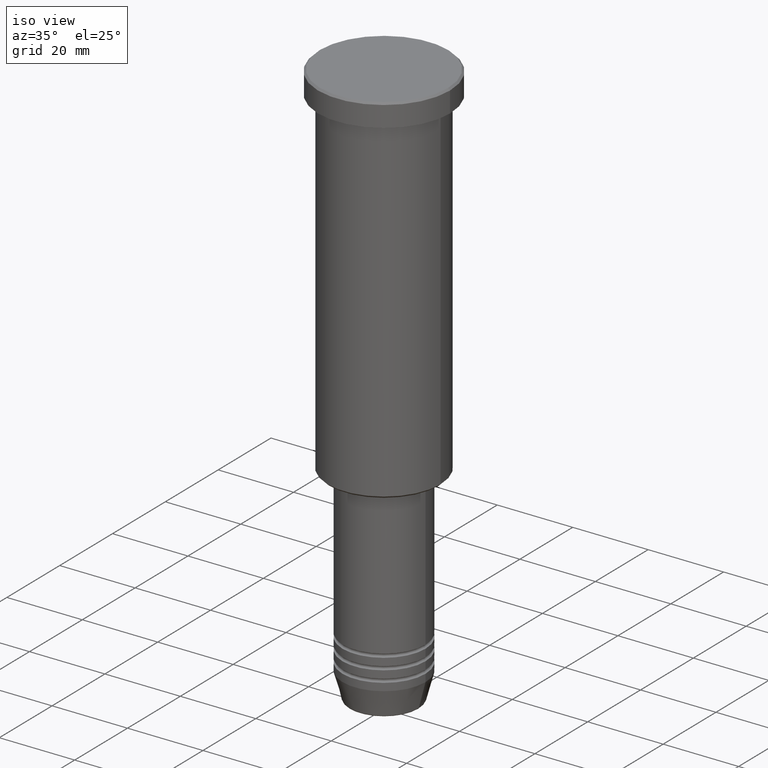
[diagram: clean part render]
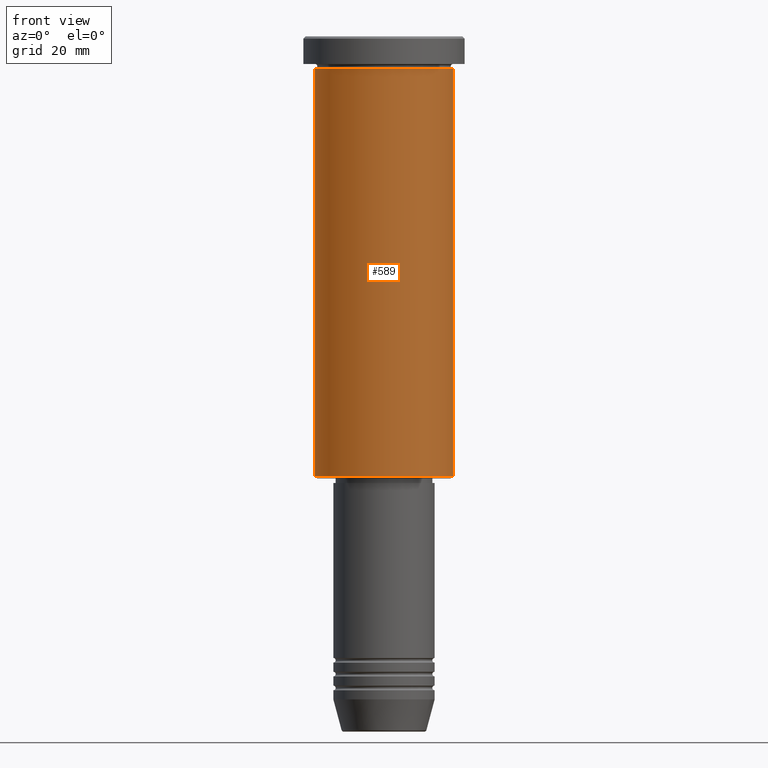
[diagram: tour spotlight — one face highlighted and labeled with its STEP entity id]
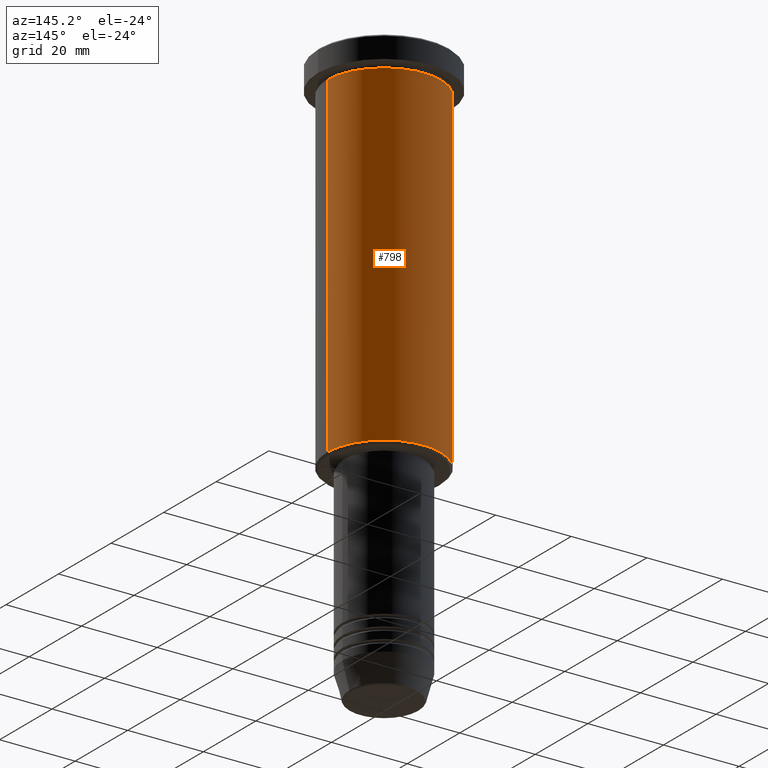
[diagram: tour spotlight — one face highlighted and labeled with its STEP entity id]
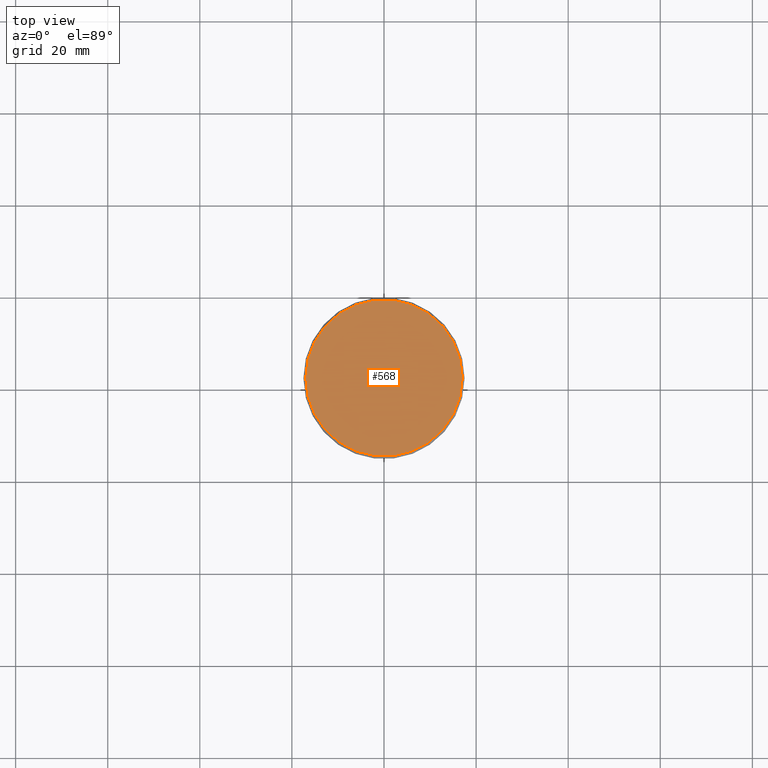
[diagram: tour spotlight — one face highlighted and labeled with its STEP entity id]
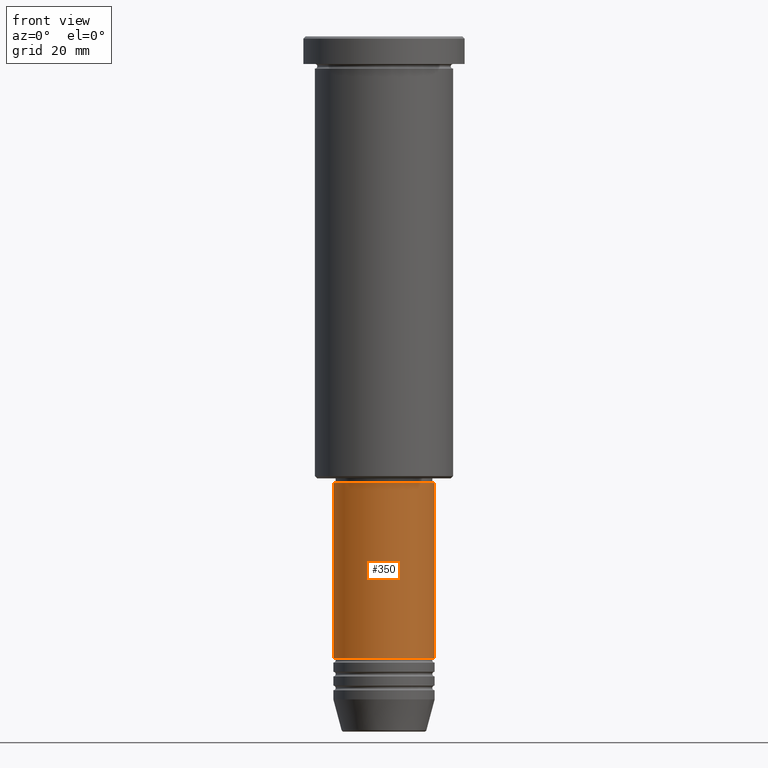
[diagram: tour spotlight — one face highlighted and labeled with its STEP entity id]
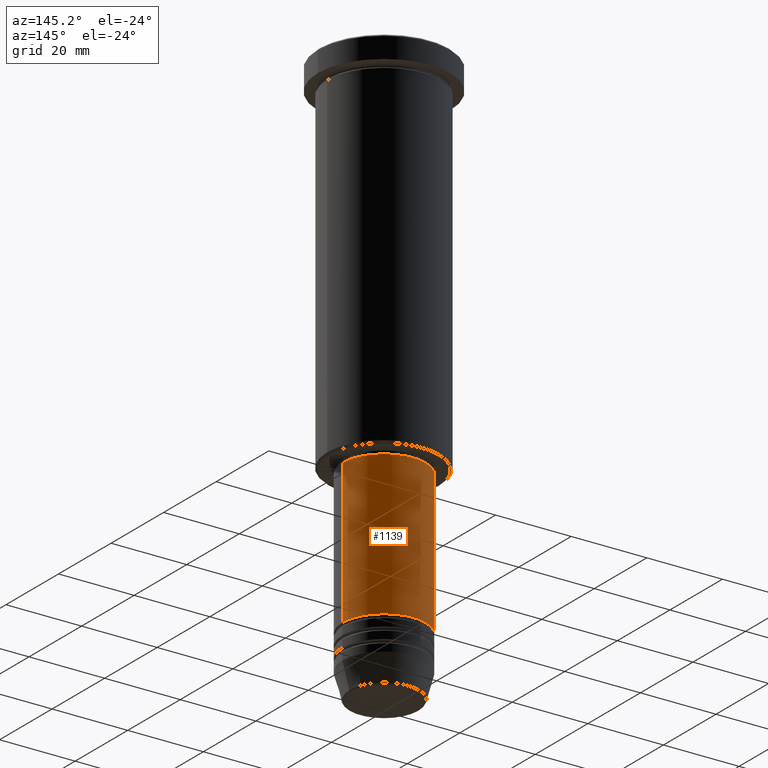
[diagram: tour spotlight — one face highlighted and labeled with its STEP entity id]
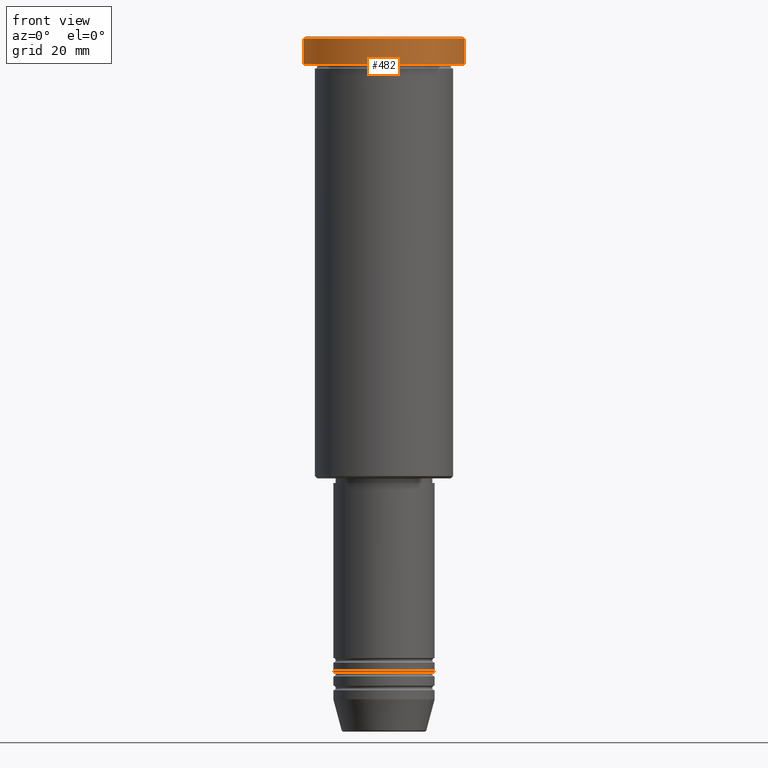
[diagram: tour spotlight — one face highlighted and labeled with its STEP entity id]
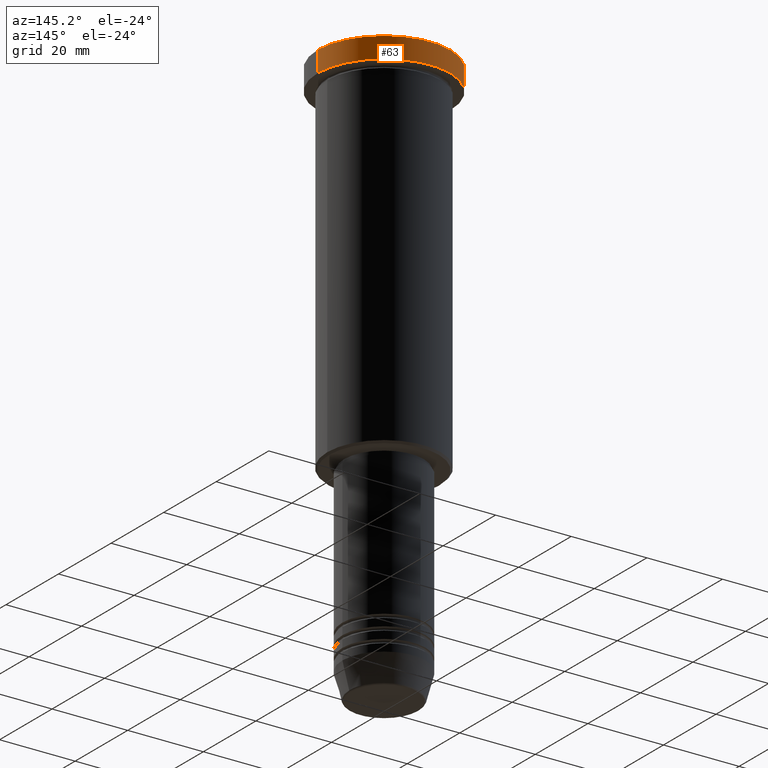
[diagram: tour spotlight — one face highlighted and labeled with its STEP entity id]
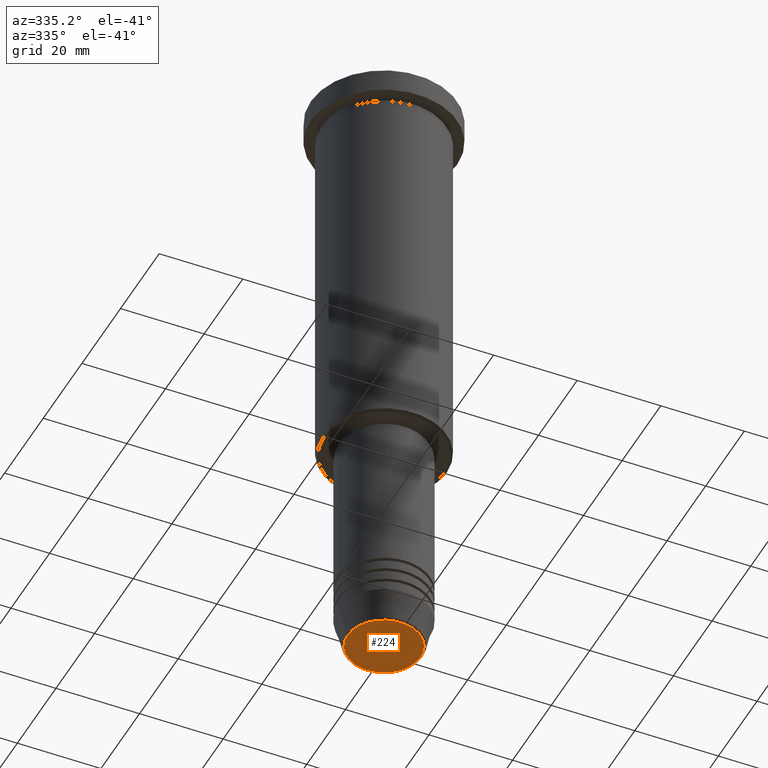
[diagram: tour spotlight — one face highlighted and labeled with its STEP entity id]
A machine part: a face-by-face anatomy tour. The part has 43 B-rep faces; the first image is the clean iso view, then the 8 largest visible faces are spotlighted one at a time (largest first), each with its STEP entity span.

Face 1 — front view, entity #589. In plain terms, the highlighted cylindrical surface (partial cylindrical patch) has radius 15 mm, axis along (-0, -0, 1).
Definition (entity closure, byte-faithful):
#41 = CARTESIAN_POINT ( 'NONE',  ( 0.000000000000000000, 0.000000000000000000, -6.999999999999995559 ) ) ;
#45 = CARTESIAN_POINT ( 'NONE',  ( -15.00000000000000000, 1.836970198721029589E-15, 0.000000000000000000 ) ) ;
#85 = CARTESIAN_POINT ( 'NONE',  ( 15.00000000000000000, 0.000000000000000000, 0.000000000000000000 ) ) ;
#117 = CIRCLE ( 'NONE', #830, 15.00000000000000000 ) ;
#174 = FACE_OUTER_BOUND ( 'NONE', #724, .T. ) ;
#227 = DIRECTION ( 'NONE',  ( 1.000000000000000000, 0.000000000000000000, 0.000000000000000000 ) ) ;
#269 = EDGE_CURVE ( 'NONE', #1089, #838, #117, .T. ) ;
#271 = CARTESIAN_POINT ( 'NONE',  ( 0.000000000000000000, 0.000000000000000000, 0.000000000000000000 ) ) ;
#409 = CARTESIAN_POINT ( 'NONE',  ( 15.00000000000000000, 0.000000000000000000, -6.999999999999995559 ) ) ;
#411 = ORIENTED_EDGE ( 'NONE', *, *, #882, .F. ) ;
#422 = CARTESIAN_POINT ( 'NONE',  ( 15.00000000000000000, 0.000000000000000000, -95.50000000000000000 ) ) ;
#427 = EDGE_CURVE ( 'NONE', #628, #852, #1126, .T. ) ;
#436 = DIRECTION ( 'NONE',  ( -0.000000000000000000, -0.000000000000000000, 1.000000000000000000 ) ) ;
#492 = DIRECTION ( 'NONE',  ( -0.000000000000000000, -0.000000000000000000, 1.000000000000000000 ) ) ;
#496 = VECTOR ( 'NONE', #787, 1000.000000000000000 ) ;
#522 = LINE ( 'NONE', #85, #752 ) ;
#548 = ORIENTED_EDGE ( 'NONE', *, *, #599, .T. ) ;
#584 = ORIENTED_EDGE ( 'NONE', *, *, #427, .F. ) ;
#589 = ADVANCED_FACE ( 'NONE', ( #174 ), #912, .T. ) ;
#599 = EDGE_CURVE ( 'NONE', #838, #852, #522, .T. ) ;
#628 = VERTEX_POINT ( 'NONE', #1183 ) ;
#640 = DIRECTION ( 'NONE',  ( -0.000000000000000000, -0.000000000000000000, 1.000000000000000000 ) ) ;
#712 = AXIS2_PLACEMENT_3D ( 'NONE', #41, #1046, #227 ) ;
#724 = EDGE_LOOP ( 'NONE', ( #411, #1055, #548, #584 ) ) ;
#752 = VECTOR ( 'NONE', #436, 1000.000000000000000 ) ;
#780 = CARTESIAN_POINT ( 'NONE',  ( 0.000000000000000000, 0.000000000000000000, -95.50000000000000000 ) ) ;
#787 = DIRECTION ( 'NONE',  ( -0.000000000000000000, -0.000000000000000000, 1.000000000000000000 ) ) ;
#830 = AXIS2_PLACEMENT_3D ( 'NONE', #780, #492, #1029 ) ;
#838 = VERTEX_POINT ( 'NONE', #422 ) ;
#852 = VERTEX_POINT ( 'NONE', #409 ) ;
#882 = EDGE_CURVE ( 'NONE', #1089, #628, #1061, .T. ) ;
#908 = DIRECTION ( 'NONE',  ( 1.000000000000000000, 0.000000000000000000, 0.000000000000000000 ) ) ;
#912 = CYLINDRICAL_SURFACE ( 'NONE', #1065, 15.00000000000000000 ) ;
#1026 = CARTESIAN_POINT ( 'NONE',  ( -15.00000000000000000, 1.836970198721029589E-15, -95.50000000000000000 ) ) ;
#1029 = DIRECTION ( 'NONE',  ( -1.000000000000000000, 0.000000000000000000, 0.000000000000000000 ) ) ;
#1046 = DIRECTION ( 'NONE',  ( -0.000000000000000000, -0.000000000000000000, 1.000000000000000000 ) ) ;
#1055 = ORIENTED_EDGE ( 'NONE', *, *, #269, .T. ) ;
#1061 = LINE ( 'NONE', #45, #496 ) ;
#1065 = AXIS2_PLACEMENT_3D ( 'NONE', #271, #640, #908 ) ;
#1089 = VERTEX_POINT ( 'NONE', #1026 ) ;
#1126 = CIRCLE ( 'NONE', #712, 15.00000000000000000 ) ;
#1183 = CARTESIAN_POINT ( 'NONE',  ( -15.00000000000000000, 1.836970198721029589E-15, -6.999999999999995559 ) ) ;

Face 2 — auxiliary view, entity #798. In plain terms, the highlighted cylindrical surface (partial cylindrical patch) has radius 15 mm, axis along (-0, -0, 1).
Definition (entity closure, byte-faithful):
#22 = ORIENTED_EDGE ( 'NONE', *, *, #730, .T. ) ;
#45 = CARTESIAN_POINT ( 'NONE',  ( -15.00000000000000000, 1.836970198721029589E-15, 0.000000000000000000 ) ) ;
#85 = CARTESIAN_POINT ( 'NONE',  ( 15.00000000000000000, 0.000000000000000000, 0.000000000000000000 ) ) ;
#130 = CARTESIAN_POINT ( 'NONE',  ( 0.000000000000000000, 0.000000000000000000, 0.000000000000000000 ) ) ;
#198 = CARTESIAN_POINT ( 'NONE',  ( 0.000000000000000000, 0.000000000000000000, -95.50000000000000000 ) ) ;
#249 = CIRCLE ( 'NONE', #654, 15.00000000000000000 ) ;
#254 = ORIENTED_EDGE ( 'NONE', *, *, #1036, .F. ) ;
#272 = CARTESIAN_POINT ( 'NONE',  ( 0.000000000000000000, 0.000000000000000000, -6.999999999999995559 ) ) ;
#276 = ORIENTED_EDGE ( 'NONE', *, *, #882, .T. ) ;
#282 = AXIS2_PLACEMENT_3D ( 'NONE', #130, #428, #611 ) ;
#339 = DIRECTION ( 'NONE',  ( 1.000000000000000000, 0.000000000000000000, 0.000000000000000000 ) ) ;
#361 = CIRCLE ( 'NONE', #846, 15.00000000000000000 ) ;
#380 = DIRECTION ( 'NONE',  ( -0.000000000000000000, -0.000000000000000000, 1.000000000000000000 ) ) ;
#409 = CARTESIAN_POINT ( 'NONE',  ( 15.00000000000000000, 0.000000000000000000, -6.999999999999995559 ) ) ;
#422 = CARTESIAN_POINT ( 'NONE',  ( 15.00000000000000000, 0.000000000000000000, -95.50000000000000000 ) ) ;
#428 = DIRECTION ( 'NONE',  ( -0.000000000000000000, -0.000000000000000000, 1.000000000000000000 ) ) ;
#436 = DIRECTION ( 'NONE',  ( -0.000000000000000000, -0.000000000000000000, 1.000000000000000000 ) ) ;
#496 = VECTOR ( 'NONE', #787, 1000.000000000000000 ) ;
#522 = LINE ( 'NONE', #85, #752 ) ;
#543 = DIRECTION ( 'NONE',  ( -0.000000000000000000, -0.000000000000000000, 1.000000000000000000 ) ) ;
#599 = EDGE_CURVE ( 'NONE', #838, #852, #522, .T. ) ;
#611 = DIRECTION ( 'NONE',  ( 1.000000000000000000, 0.000000000000000000, 0.000000000000000000 ) ) ;
#618 = EDGE_LOOP ( 'NONE', ( #22, #276, #254, #652 ) ) ;
#628 = VERTEX_POINT ( 'NONE', #1183 ) ;
#652 = ORIENTED_EDGE ( 'NONE', *, *, #599, .F. ) ;
#654 = AXIS2_PLACEMENT_3D ( 'NONE', #272, #543, #339 ) ;
#730 = EDGE_CURVE ( 'NONE', #838, #1089, #361, .T. ) ;
#752 = VECTOR ( 'NONE', #436, 1000.000000000000000 ) ;
#758 = FACE_OUTER_BOUND ( 'NONE', #618, .T. ) ;
#787 = DIRECTION ( 'NONE',  ( -0.000000000000000000, -0.000000000000000000, 1.000000000000000000 ) ) ;
#798 = ADVANCED_FACE ( 'NONE', ( #758 ), #1105, .T. ) ;
#838 = VERTEX_POINT ( 'NONE', #422 ) ;
#846 = AXIS2_PLACEMENT_3D ( 'NONE', #198, #380, #1027 ) ;
#852 = VERTEX_POINT ( 'NONE', #409 ) ;
#882 = EDGE_CURVE ( 'NONE', #1089, #628, #1061, .T. ) ;
#1026 = CARTESIAN_POINT ( 'NONE',  ( -15.00000000000000000, 1.836970198721029589E-15, -95.50000000000000000 ) ) ;
#1027 = DIRECTION ( 'NONE',  ( -1.000000000000000000, 0.000000000000000000, 0.000000000000000000 ) ) ;
#1036 = EDGE_CURVE ( 'NONE', #852, #628, #249, .T. ) ;
#1061 = LINE ( 'NONE', #45, #496 ) ;
#1089 = VERTEX_POINT ( 'NONE', #1026 ) ;
#1105 = CYLINDRICAL_SURFACE ( 'NONE', #282, 15.00000000000000000 ) ;
#1183 = CARTESIAN_POINT ( 'NONE',  ( -15.00000000000000000, 1.836970198721029589E-15, -6.999999999999995559 ) ) ;

Face 3 — top view, entity #568. In plain terms, the highlighted planar face has unit normal (0, -0, 1).
Definition (entity closure, byte-faithful):
#146 = CARTESIAN_POINT ( 'NONE',  ( 0.000000000000000000, 0.000000000000000000, 0.000000000000000000 ) ) ;
#222 = CARTESIAN_POINT ( 'NONE',  ( 0.000000000000000000, 0.000000000000000000, 0.000000000000000000 ) ) ;
#233 = DIRECTION ( 'NONE',  ( 1.000000000000000000, 0.000000000000000000, 0.000000000000000000 ) ) ;
#248 = AXIS2_PLACEMENT_3D ( 'NONE', #222, #884, #587 ) ;
#351 = EDGE_LOOP ( 'NONE', ( #538, #983 ) ) ;
#354 = VERTEX_POINT ( 'NONE', #788 ) ;
#426 = VERTEX_POINT ( 'NONE', #508 ) ;
#508 = CARTESIAN_POINT ( 'NONE',  ( 17.00000000000004263, 2.112515728529187222E-15, 0.000000000000000000 ) ) ;
#538 = ORIENTED_EDGE ( 'NONE', *, *, #928, .T. ) ;
#568 = ADVANCED_FACE ( 'NONE', ( #632 ), #988, .T. ) ;
#587 = DIRECTION ( 'NONE',  ( 1.000000000000000000, 0.000000000000000000, 0.000000000000000000 ) ) ;
#632 = FACE_OUTER_BOUND ( 'NONE', #351, .T. ) ;
#633 = CIRCLE ( 'NONE', #733, 17.00000000000004263 ) ;
#694 = DIRECTION ( 'NONE',  ( -0.000000000000000000, -0.000000000000000000, 1.000000000000000000 ) ) ;
#727 = DIRECTION ( 'NONE',  ( 0.000000000000000000, -0.000000000000000000, 1.000000000000000000 ) ) ;
#733 = AXIS2_PLACEMENT_3D ( 'NONE', #146, #694, #233 ) ;
#738 = DIRECTION ( 'NONE',  ( 1.000000000000000000, 0.000000000000000000, 0.000000000000000000 ) ) ;
#788 = CARTESIAN_POINT ( 'NONE',  ( -17.00000000000004263, 0.000000000000000000, 0.000000000000000000 ) ) ;
#808 = CARTESIAN_POINT ( 'NONE',  ( 0.000000000000000000, 0.000000000000000000, 0.000000000000000000 ) ) ;
#884 = DIRECTION ( 'NONE',  ( -0.000000000000000000, -0.000000000000000000, 1.000000000000000000 ) ) ;
#897 = EDGE_CURVE ( 'NONE', #426, #354, #1140, .T. ) ;
#917 = AXIS2_PLACEMENT_3D ( 'NONE', #808, #727, #738 ) ;
#928 = EDGE_CURVE ( 'NONE', #354, #426, #633, .T. ) ;
#983 = ORIENTED_EDGE ( 'NONE', *, *, #897, .T. ) ;
#988 = PLANE ( 'NONE',  #917 ) ;
#1140 = CIRCLE ( 'NONE', #248, 17.00000000000004263 ) ;

Face 4 — front view, entity #350. In plain terms, the highlighted cylindrical surface (partial cylindrical patch) has radius 11 mm, axis along (-0, -0, 1).
Definition (entity closure, byte-faithful):
#9 = AXIS2_PLACEMENT_3D ( 'NONE', #944, #1037, #120 ) ;
#18 = VERTEX_POINT ( 'NONE', #320 ) ;
#69 = VERTEX_POINT ( 'NONE', #1153 ) ;
#114 = CARTESIAN_POINT ( 'NONE',  ( 11.00000000000000000, 0.000000000000000000, -97.00000000000000000 ) ) ;
#120 = DIRECTION ( 'NONE',  ( 1.000000000000000000, 0.000000000000000000, 0.000000000000000000 ) ) ;
#125 = ORIENTED_EDGE ( 'NONE', *, *, #232, .F. ) ;
#166 = EDGE_CURVE ( 'NONE', #182, #212, #726, .T. ) ;
#182 = VERTEX_POINT ( 'NONE', #588 ) ;
#194 = VECTOR ( 'NONE', #199, 1000.000000000000000 ) ;
#199 = DIRECTION ( 'NONE',  ( -0.000000000000000000, -0.000000000000000000, 1.000000000000000000 ) ) ;
#207 = ORIENTED_EDGE ( 'NONE', *, *, #330, .T. ) ;
#212 = VERTEX_POINT ( 'NONE', #114 ) ;
#232 = EDGE_CURVE ( 'NONE', #18, #69, #843, .T. ) ;
#247 = EDGE_LOOP ( 'NONE', ( #125, #207, #888, #892 ) ) ;
#250 = CIRCLE ( 'NONE', #920, 11.00000000000000000 ) ;
#320 = CARTESIAN_POINT ( 'NONE',  ( -11.00000000000000000, 1.347111479062088405E-15, -134.9999999999999716 ) ) ;
#330 = EDGE_CURVE ( 'NONE', #18, #182, #756, .T. ) ;
#350 = ADVANCED_FACE ( 'NONE', ( #971 ), #503, .T. ) ;
#358 = DIRECTION ( 'NONE',  ( -0.000000000000000000, -0.000000000000000000, 1.000000000000000000 ) ) ;
#412 = EDGE_CURVE ( 'NONE', #69, #212, #250, .T. ) ;
#416 = DIRECTION ( 'NONE',  ( 1.000000000000000000, 0.000000000000000000, 0.000000000000000000 ) ) ;
#429 = CARTESIAN_POINT ( 'NONE',  ( 11.00000000000000000, 0.000000000000000000, 0.000000000000000000 ) ) ;
#503 = CYLINDRICAL_SURFACE ( 'NONE', #960, 11.00000000000000000 ) ;
#588 = CARTESIAN_POINT ( 'NONE',  ( 11.00000000000000000, 0.000000000000000000, -134.9999999999999716 ) ) ;
#713 = CARTESIAN_POINT ( 'NONE',  ( 0.000000000000000000, 0.000000000000000000, 0.000000000000000000 ) ) ;
#726 = LINE ( 'NONE', #429, #1100 ) ;
#751 = CARTESIAN_POINT ( 'NONE',  ( -11.00000000000000000, 1.347111479062088405E-15, 0.000000000000000000 ) ) ;
#756 = CIRCLE ( 'NONE', #9, 11.00000000000000000 ) ;
#784 = DIRECTION ( 'NONE',  ( 1.000000000000000000, 0.000000000000000000, 0.000000000000000000 ) ) ;
#805 = DIRECTION ( 'NONE',  ( -0.000000000000000000, -0.000000000000000000, 1.000000000000000000 ) ) ;
#843 = LINE ( 'NONE', #751, #194 ) ;
#873 = CARTESIAN_POINT ( 'NONE',  ( 0.000000000000000000, 0.000000000000000000, -97.00000000000000000 ) ) ;
#887 = DIRECTION ( 'NONE',  ( -0.000000000000000000, -0.000000000000000000, 1.000000000000000000 ) ) ;
#888 = ORIENTED_EDGE ( 'NONE', *, *, #166, .T. ) ;
#892 = ORIENTED_EDGE ( 'NONE', *, *, #412, .F. ) ;
#920 = AXIS2_PLACEMENT_3D ( 'NONE', #873, #887, #416 ) ;
#944 = CARTESIAN_POINT ( 'NONE',  ( 0.000000000000000000, 0.000000000000000000, -134.9999999999999716 ) ) ;
#960 = AXIS2_PLACEMENT_3D ( 'NONE', #713, #805, #784 ) ;
#971 = FACE_OUTER_BOUND ( 'NONE', #247, .T. ) ;
#1037 = DIRECTION ( 'NONE',  ( -0.000000000000000000, -0.000000000000000000, 1.000000000000000000 ) ) ;
#1100 = VECTOR ( 'NONE', #358, 1000.000000000000000 ) ;
#1153 = CARTESIAN_POINT ( 'NONE',  ( -11.00000000000000000, 1.347111479062088405E-15, -97.00000000000000000 ) ) ;

Face 5 — auxiliary view, entity #1139. In plain terms, the highlighted cylindrical surface (partial cylindrical patch) has radius 11 mm, axis along (-0, -0, 1).
Definition (entity closure, byte-faithful):
#3 = DIRECTION ( 'NONE',  ( -0.000000000000000000, -0.000000000000000000, 1.000000000000000000 ) ) ;
#18 = VERTEX_POINT ( 'NONE', #320 ) ;
#69 = VERTEX_POINT ( 'NONE', #1153 ) ;
#92 = AXIS2_PLACEMENT_3D ( 'NONE', #835, #3, #371 ) ;
#106 = CARTESIAN_POINT ( 'NONE',  ( 0.000000000000000000, 0.000000000000000000, -97.00000000000000000 ) ) ;
#114 = CARTESIAN_POINT ( 'NONE',  ( 11.00000000000000000, 0.000000000000000000, -97.00000000000000000 ) ) ;
#147 = CARTESIAN_POINT ( 'NONE',  ( 0.000000000000000000, 0.000000000000000000, -134.9999999999999716 ) ) ;
#159 = ORIENTED_EDGE ( 'NONE', *, *, #255, .F. ) ;
#166 = EDGE_CURVE ( 'NONE', #182, #212, #726, .T. ) ;
#182 = VERTEX_POINT ( 'NONE', #588 ) ;
#194 = VECTOR ( 'NONE', #199, 1000.000000000000000 ) ;
#199 = DIRECTION ( 'NONE',  ( -0.000000000000000000, -0.000000000000000000, 1.000000000000000000 ) ) ;
#212 = VERTEX_POINT ( 'NONE', #114 ) ;
#232 = EDGE_CURVE ( 'NONE', #18, #69, #843, .T. ) ;
#255 = EDGE_CURVE ( 'NONE', #212, #69, #958, .T. ) ;
#320 = CARTESIAN_POINT ( 'NONE',  ( -11.00000000000000000, 1.347111479062088405E-15, -134.9999999999999716 ) ) ;
#358 = DIRECTION ( 'NONE',  ( -0.000000000000000000, -0.000000000000000000, 1.000000000000000000 ) ) ;
#371 = DIRECTION ( 'NONE',  ( 1.000000000000000000, 0.000000000000000000, 0.000000000000000000 ) ) ;
#386 = DIRECTION ( 'NONE',  ( -0.000000000000000000, -0.000000000000000000, 1.000000000000000000 ) ) ;
#393 = EDGE_CURVE ( 'NONE', #182, #18, #777, .T. ) ;
#429 = CARTESIAN_POINT ( 'NONE',  ( 11.00000000000000000, 0.000000000000000000, 0.000000000000000000 ) ) ;
#472 = DIRECTION ( 'NONE',  ( 1.000000000000000000, 0.000000000000000000, 0.000000000000000000 ) ) ;
#499 = DIRECTION ( 'NONE',  ( 1.000000000000000000, 0.000000000000000000, 0.000000000000000000 ) ) ;
#588 = CARTESIAN_POINT ( 'NONE',  ( 11.00000000000000000, 0.000000000000000000, -134.9999999999999716 ) ) ;
#609 = DIRECTION ( 'NONE',  ( -0.000000000000000000, -0.000000000000000000, 1.000000000000000000 ) ) ;
#663 = ORIENTED_EDGE ( 'NONE', *, *, #166, .F. ) ;
#726 = LINE ( 'NONE', #429, #1100 ) ;
#751 = CARTESIAN_POINT ( 'NONE',  ( -11.00000000000000000, 1.347111479062088405E-15, 0.000000000000000000 ) ) ;
#757 = FACE_OUTER_BOUND ( 'NONE', #779, .T. ) ;
#777 = CIRCLE ( 'NONE', #807, 11.00000000000000000 ) ;
#779 = EDGE_LOOP ( 'NONE', ( #907, #1019, #159, #663 ) ) ;
#807 = AXIS2_PLACEMENT_3D ( 'NONE', #147, #609, #499 ) ;
#835 = CARTESIAN_POINT ( 'NONE',  ( 0.000000000000000000, 0.000000000000000000, 0.000000000000000000 ) ) ;
#843 = LINE ( 'NONE', #751, #194 ) ;
#853 = CYLINDRICAL_SURFACE ( 'NONE', #92, 11.00000000000000000 ) ;
#907 = ORIENTED_EDGE ( 'NONE', *, *, #393, .T. ) ;
#958 = CIRCLE ( 'NONE', #1014, 11.00000000000000000 ) ;
#1014 = AXIS2_PLACEMENT_3D ( 'NONE', #106, #386, #472 ) ;
#1019 = ORIENTED_EDGE ( 'NONE', *, *, #232, .T. ) ;
#1100 = VECTOR ( 'NONE', #358, 1000.000000000000000 ) ;
#1139 = ADVANCED_FACE ( 'NONE', ( #757 ), #853, .T. ) ;
#1153 = CARTESIAN_POINT ( 'NONE',  ( -11.00000000000000000, 1.347111479062088405E-15, -97.00000000000000000 ) ) ;

Face 6 — front view, entity #482. In plain terms, the highlighted cylindrical surface (partial cylindrical patch) has radius 17.5 mm, axis along (-0, -0, 1).
Definition (entity closure, byte-faithful):
#25 = CARTESIAN_POINT ( 'NONE',  ( 17.50000000000000000, 0.000000000000000000, -0.4999999999999865663 ) ) ;
#30 = ORIENTED_EDGE ( 'NONE', *, *, #535, .T. ) ;
#61 = CARTESIAN_POINT ( 'NONE',  ( -17.50000000000000000, 2.143131898507868248E-15, -0.4999999999999865663 ) ) ;
#66 = ORIENTED_EDGE ( 'NONE', *, *, #1169, .T. ) ;
#95 = ORIENTED_EDGE ( 'NONE', *, *, #387, .T. ) ;
#122 = CARTESIAN_POINT ( 'NONE',  ( 0.000000000000000000, 0.000000000000000000, -0.4999999999999865663 ) ) ;
#131 = DIRECTION ( 'NONE',  ( -0.000000000000000000, -0.000000000000000000, 1.000000000000000000 ) ) ;
#213 = VERTEX_POINT ( 'NONE', #1130 ) ;
#280 = VECTOR ( 'NONE', #131, 1000.000000000000000 ) ;
#313 = ORIENTED_EDGE ( 'NONE', *, *, #646, .F. ) ;
#324 = CARTESIAN_POINT ( 'NONE',  ( 0.000000000000000000, 0.000000000000000000, 0.000000000000000000 ) ) ;
#325 = VECTOR ( 'NONE', #662, 1000.000000000000000 ) ;
#373 = VERTEX_POINT ( 'NONE', #61 ) ;
#377 = AXIS2_PLACEMENT_3D ( 'NONE', #324, #699, #450 ) ;
#384 = DIRECTION ( 'NONE',  ( 1.000000000000000000, 0.000000000000000000, 0.000000000000000000 ) ) ;
#387 = EDGE_CURVE ( 'NONE', #213, #721, #622, .T. ) ;
#410 = FACE_OUTER_BOUND ( 'NONE', #1134, .T. ) ;
#450 = DIRECTION ( 'NONE',  ( 1.000000000000000000, 0.000000000000000000, 0.000000000000000000 ) ) ;
#480 = VERTEX_POINT ( 'NONE', #877 ) ;
#482 = ADVANCED_FACE ( 'NONE', ( #410 ), #1137, .T. ) ;
#535 = EDGE_CURVE ( 'NONE', #480, #213, #651, .T. ) ;
#539 = DIRECTION ( 'NONE',  ( -0.000000000000000000, -0.000000000000000000, 1.000000000000000000 ) ) ;
#582 = CARTESIAN_POINT ( 'NONE',  ( -17.50000000000000000, 2.143131898507868248E-15, 0.000000000000000000 ) ) ;
#619 = AXIS2_PLACEMENT_3D ( 'NONE', #1092, #539, #645 ) ;
#622 = LINE ( 'NONE', #705, #280 ) ;
#645 = DIRECTION ( 'NONE',  ( 1.000000000000000000, 0.000000000000000000, 0.000000000000000000 ) ) ;
#646 = EDGE_CURVE ( 'NONE', #480, #373, #837, .T. ) ;
#651 = CIRCLE ( 'NONE', #619, 17.50000000000000000 ) ;
#662 = DIRECTION ( 'NONE',  ( -0.000000000000000000, -0.000000000000000000, 1.000000000000000000 ) ) ;
#699 = DIRECTION ( 'NONE',  ( -0.000000000000000000, -0.000000000000000000, 1.000000000000000000 ) ) ;
#705 = CARTESIAN_POINT ( 'NONE',  ( 17.50000000000000000, 0.000000000000000000, 0.000000000000000000 ) ) ;
#721 = VERTEX_POINT ( 'NONE', #25 ) ;
#774 = CIRCLE ( 'NONE', #829, 17.50000000000000000 ) ;
#829 = AXIS2_PLACEMENT_3D ( 'NONE', #122, #832, #384 ) ;
#832 = DIRECTION ( 'NONE',  ( 0.000000000000000000, 0.000000000000000000, -1.000000000000000000 ) ) ;
#837 = LINE ( 'NONE', #582, #325 ) ;
#877 = CARTESIAN_POINT ( 'NONE',  ( -17.50000000000000000, 2.143131898507868248E-15, -5.999999999999995559 ) ) ;
#1092 = CARTESIAN_POINT ( 'NONE',  ( 0.000000000000000000, 0.000000000000000000, -5.999999999999995559 ) ) ;
#1130 = CARTESIAN_POINT ( 'NONE',  ( 17.50000000000000000, 0.000000000000000000, -5.999999999999995559 ) ) ;
#1134 = EDGE_LOOP ( 'NONE', ( #313, #30, #95, #66 ) ) ;
#1137 = CYLINDRICAL_SURFACE ( 'NONE', #377, 17.50000000000000000 ) ;
#1169 = EDGE_CURVE ( 'NONE', #721, #373, #774, .T. ) ;

Face 7 — auxiliary view, entity #63. In plain terms, the highlighted cylindrical surface (partial cylindrical patch) has radius 17.5 mm, axis along (-0, -0, 1).
Definition (entity closure, byte-faithful):
#13 = CIRCLE ( 'NONE', #58, 17.50000000000000000 ) ;
#25 = CARTESIAN_POINT ( 'NONE',  ( 17.50000000000000000, 0.000000000000000000, -0.4999999999999865663 ) ) ;
#58 = AXIS2_PLACEMENT_3D ( 'NONE', #84, #725, #987 ) ;
#61 = CARTESIAN_POINT ( 'NONE',  ( -17.50000000000000000, 2.143131898507868248E-15, -0.4999999999999865663 ) ) ;
#63 = ADVANCED_FACE ( 'NONE', ( #1025 ), #769, .T. ) ;
#84 = CARTESIAN_POINT ( 'NONE',  ( 0.000000000000000000, 0.000000000000000000, -5.999999999999995559 ) ) ;
#107 = CARTESIAN_POINT ( 'NONE',  ( 0.000000000000000000, 0.000000000000000000, 0.000000000000000000 ) ) ;
#115 = DIRECTION ( 'NONE',  ( -0.000000000000000000, -0.000000000000000000, 1.000000000000000000 ) ) ;
#131 = DIRECTION ( 'NONE',  ( -0.000000000000000000, -0.000000000000000000, 1.000000000000000000 ) ) ;
#213 = VERTEX_POINT ( 'NONE', #1130 ) ;
#257 = CARTESIAN_POINT ( 'NONE',  ( 0.000000000000000000, 0.000000000000000000, -0.4999999999999865663 ) ) ;
#280 = VECTOR ( 'NONE', #131, 1000.000000000000000 ) ;
#325 = VECTOR ( 'NONE', #662, 1000.000000000000000 ) ;
#373 = VERTEX_POINT ( 'NONE', #61 ) ;
#387 = EDGE_CURVE ( 'NONE', #213, #721, #622, .T. ) ;
#456 = DIRECTION ( 'NONE',  ( 1.000000000000000000, 0.000000000000000000, 0.000000000000000000 ) ) ;
#473 = ORIENTED_EDGE ( 'NONE', *, *, #502, .T. ) ;
#480 = VERTEX_POINT ( 'NONE', #877 ) ;
#502 = EDGE_CURVE ( 'NONE', #373, #721, #1011, .T. ) ;
#570 = ORIENTED_EDGE ( 'NONE', *, *, #387, .F. ) ;
#582 = CARTESIAN_POINT ( 'NONE',  ( -17.50000000000000000, 2.143131898507868248E-15, 0.000000000000000000 ) ) ;
#622 = LINE ( 'NONE', #705, #280 ) ;
#646 = EDGE_CURVE ( 'NONE', #480, #373, #837, .T. ) ;
#662 = DIRECTION ( 'NONE',  ( -0.000000000000000000, -0.000000000000000000, 1.000000000000000000 ) ) ;
#705 = CARTESIAN_POINT ( 'NONE',  ( 17.50000000000000000, 0.000000000000000000, 0.000000000000000000 ) ) ;
#721 = VERTEX_POINT ( 'NONE', #25 ) ;
#725 = DIRECTION ( 'NONE',  ( -0.000000000000000000, -0.000000000000000000, 1.000000000000000000 ) ) ;
#769 = CYLINDRICAL_SURFACE ( 'NONE', #775, 17.50000000000000000 ) ;
#775 = AXIS2_PLACEMENT_3D ( 'NONE', #107, #115, #1159 ) ;
#792 = ORIENTED_EDGE ( 'NONE', *, *, #646, .T. ) ;
#837 = LINE ( 'NONE', #582, #325 ) ;
#877 = CARTESIAN_POINT ( 'NONE',  ( -17.50000000000000000, 2.143131898507868248E-15, -5.999999999999995559 ) ) ;
#978 = AXIS2_PLACEMENT_3D ( 'NONE', #257, #1084, #456 ) ;
#982 = EDGE_CURVE ( 'NONE', #213, #480, #13, .T. ) ;
#987 = DIRECTION ( 'NONE',  ( 1.000000000000000000, 0.000000000000000000, 0.000000000000000000 ) ) ;
#1008 = EDGE_LOOP ( 'NONE', ( #1165, #792, #473, #570 ) ) ;
#1011 = CIRCLE ( 'NONE', #978, 17.50000000000000000 ) ;
#1025 = FACE_OUTER_BOUND ( 'NONE', #1008, .T. ) ;
#1084 = DIRECTION ( 'NONE',  ( 0.000000000000000000, 0.000000000000000000, -1.000000000000000000 ) ) ;
#1130 = CARTESIAN_POINT ( 'NONE',  ( 17.50000000000000000, 0.000000000000000000, -5.999999999999995559 ) ) ;
#1159 = DIRECTION ( 'NONE',  ( 1.000000000000000000, 0.000000000000000000, 0.000000000000000000 ) ) ;
#1165 = ORIENTED_EDGE ( 'NONE', *, *, #982, .T. ) ;

Face 8 — auxiliary view, entity #224. In plain terms, the highlighted planar face has unit normal (0, -0, 1).
Definition (entity closure, byte-faithful):
#7 = CARTESIAN_POINT ( 'NONE',  ( 8.740692158992656502, 0.000000000000000000, -151.0000000000000284 ) ) ;
#12 = FACE_OUTER_BOUND ( 'NONE', #483, .T. ) ;
#19 = DIRECTION ( 'NONE',  ( 0.000000000000000000, -0.000000000000000000, 1.000000000000000000 ) ) ;
#81 = EDGE_CURVE ( 'NONE', #1103, #980, #307, .T. ) ;
#103 = ORIENTED_EDGE ( 'NONE', *, *, #81, .T. ) ;
#129 = CARTESIAN_POINT ( 'NONE',  ( 0.000000000000000000, 0.000000000000000000, -151.0000000000000284 ) ) ;
#133 = AXIS2_PLACEMENT_3D ( 'NONE', #600, #906, #638 ) ;
#224 = ADVANCED_FACE ( 'NONE', ( #12 ), #850, .F. ) ;
#298 = CARTESIAN_POINT ( 'NONE',  ( 0.000000000000000000, 0.000000000000000000, -151.0000000000000284 ) ) ;
#307 = CIRCLE ( 'NONE', #398, 8.740692158992656502 ) ;
#398 = AXIS2_PLACEMENT_3D ( 'NONE', #129, #485, #692 ) ;
#483 = EDGE_LOOP ( 'NONE', ( #103, #904 ) ) ;
#485 = DIRECTION ( 'NONE',  ( 0.000000000000000000, 0.000000000000000000, -1.000000000000000000 ) ) ;
#600 = CARTESIAN_POINT ( 'NONE',  ( 0.000000000000000000, 0.000000000000000000, -151.0000000000000284 ) ) ;
#638 = DIRECTION ( 'NONE',  ( 1.000000000000000000, 0.000000000000000000, 0.000000000000000000 ) ) ;
#678 = AXIS2_PLACEMENT_3D ( 'NONE', #298, #19, #763 ) ;
#692 = DIRECTION ( 'NONE',  ( 1.000000000000000000, 0.000000000000000000, 0.000000000000000000 ) ) ;
#763 = DIRECTION ( 'NONE',  ( 1.000000000000000000, 0.000000000000000000, 0.000000000000000000 ) ) ;
#850 = PLANE ( 'NONE',  #678 ) ;
#904 = ORIENTED_EDGE ( 'NONE', *, *, #935, .T. ) ;
#906 = DIRECTION ( 'NONE',  ( 0.000000000000000000, 0.000000000000000000, -1.000000000000000000 ) ) ;
#935 = EDGE_CURVE ( 'NONE', #980, #1103, #1157, .T. ) ;
#980 = VERTEX_POINT ( 'NONE', #1166 ) ;
#1103 = VERTEX_POINT ( 'NONE', #7 ) ;
#1157 = CIRCLE ( 'NONE', #133, 8.740692158992656502 ) ;
#1166 = CARTESIAN_POINT ( 'NONE',  ( -8.740692158992656502, 1.099999016768739653E-15, -151.0000000000000284 ) ) ;